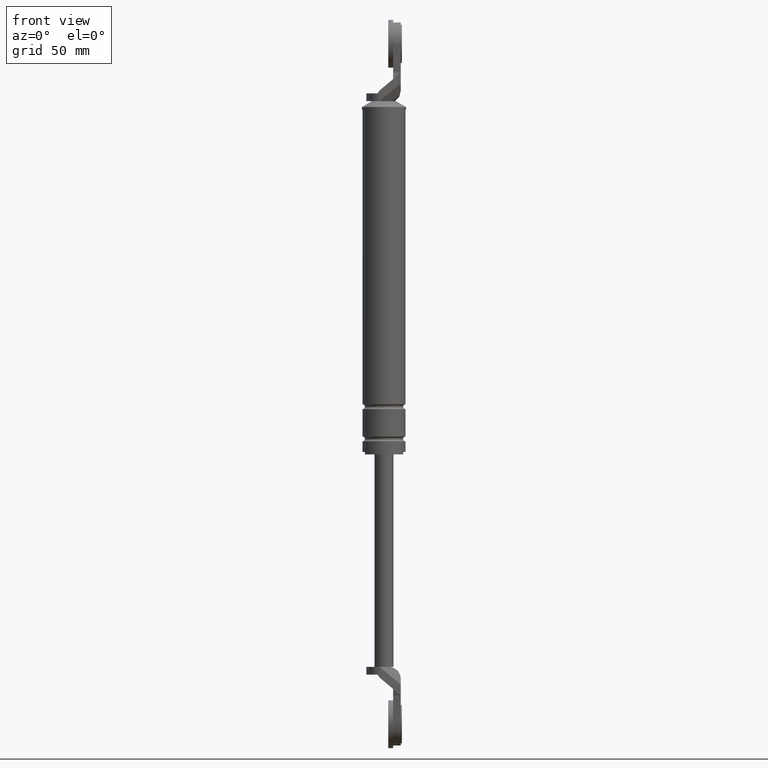
[diagram: clean part render]
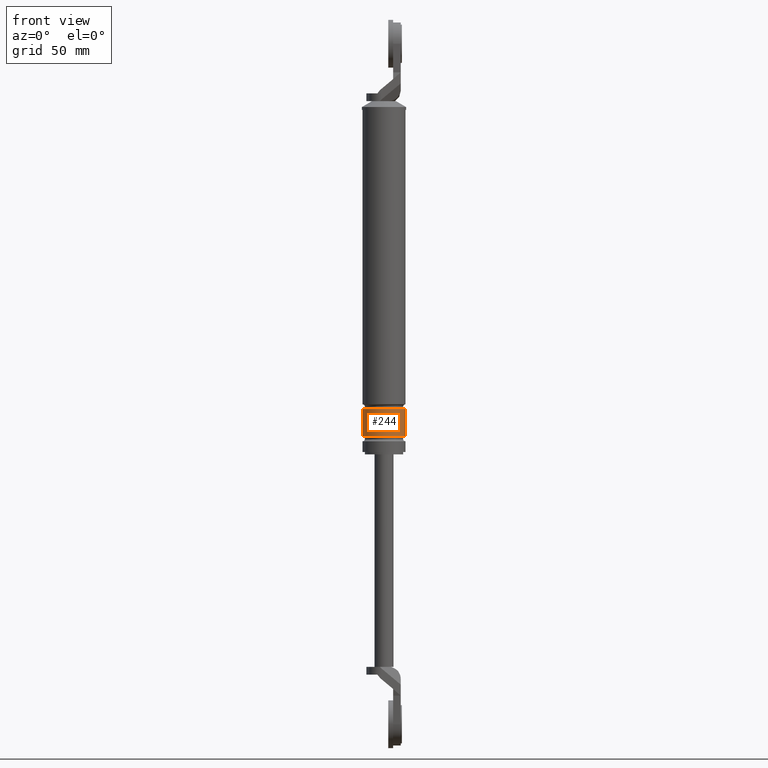
[diagram: same view with one face highlighted and labeled with its STEP entity id]
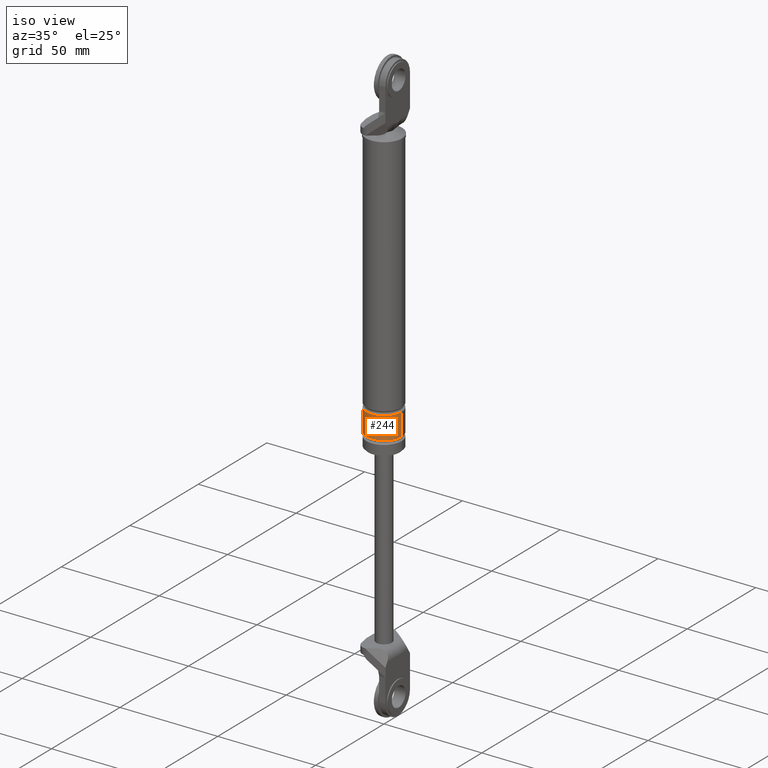
[diagram: same view with one face highlighted and labeled with its STEP entity id]
A machine part, front view. The second image highlights one B-rep face of the part: STEP entity #244.
A second angle (iso view) of the same face is appended — the face is thin or edge-on in the first view.
In plain terms, the highlighted cylindrical surface (edge-blend (fillet) strip) has radius 9 mm, axis along (0, 0, 1).
Its self-contained STEP definition (entity closure, byte-faithful):
#244=ADVANCED_FACE('',(#695),#694,.T.);
#694=CYLINDRICAL_SURFACE('',#1407,9.00000000000E+000);
#695=FACE_OUTER_BOUND('',#1408,.T.);
#1404=CARTESIAN_POINT('',(0.00000000000E+000,3.58204186421E-014,0.00000000000E+000));
#1405=DIRECTION('',(-0.00000000000E+000,-0.00000000000E+000,1.00000000000E+000));
#1406=DIRECTION('',(1.00000000000E+000,0.00000000000E+000,0.00000000000E+000));
#1407=AXIS2_PLACEMENT_3D('',#1404,#1405,#1406);
#1408=EDGE_LOOP('',(#1954,#1955,#1956,#1957));
#1954=ORIENTED_EDGE('',*,*,#2265,.F.);
#1955=ORIENTED_EDGE('',*,*,#2262,.T.);
#1956=ORIENTED_EDGE('',*,*,#2266,.T.);
#1957=ORIENTED_EDGE('',*,*,#2264,.F.);
#2262=EDGE_CURVE('',#3054,#3047,#3055,.T.);
#2264=EDGE_CURVE('',#3061,#3046,#3068,.T.);
#2265=EDGE_CURVE('',#3054,#3061,#3074,.T.);
#2266=EDGE_CURVE('',#3047,#3046,#3080,.T.);
#3046=VERTEX_POINT('',#4103);
#3047=VERTEX_POINT('',#4104);
#3054=VERTEX_POINT('',#4109);
#3055=(BOUNDED_CURVE() B_SPLINE_CURVE(1,(#4110,#4111),.UNSPECIFIED.,.F.,.F.) B_SPLINE_CURVE_WITH_KNOTS((2,2),(8.33333343261E-002,9.16666667006E-001),.UNSPECIFIED.) CURVE() GEOMETRIC_REPRESENTATION_ITEM() RATIONAL_B_SPLINE_CURVE((1.00000000000E+000,1.00000000000E+000)) REPRESENTATION_ITEM('') );
#3061=VERTEX_POINT('',#4112);
#3068=(BOUNDED_CURVE() B_SPLINE_CURVE(1,(#4117,#4118),.UNSPECIFIED.,.F.,.F.) B_SPLINE_CURVE_WITH_KNOTS((2,2),(8.33333333333E-002,9.16666666667E-001),.UNSPECIFIED.) CURVE() GEOMETRIC_REPRESENTATION_ITEM() RATIONAL_B_SPLINE_CURVE((7.50000000000E-001,7.50000000000E-001)) REPRESENTATION_ITEM('') );
#3074=CIRCLE('',#4122,9.00000000000E+000);
#3080=CIRCLE('',#4126,9.00000000000E+000);
#4103=CARTESIAN_POINT('',(-9.00000000000E+000,3.58204186421E-014,-4.00000150000E+001));
#4104=CARTESIAN_POINT('',(9.00000000000E+000,3.61192557345E-014,-4.00000150000E+001));
#4109=CARTESIAN_POINT('',(9.00000000000E+000,3.61192557345E-014,-5.15000150000E+001));
#4110=CARTESIAN_POINT('',(9.00000000000E+000,3.58204186421E-014,-5.15000149863E+001));
#4111=CARTESIAN_POINT('',(9.00000000000E+000,3.58204186421E-014,-4.00000149953E+001));
#4112=CARTESIAN_POINT('',(-9.00000000000E+000,3.58204186421E-014,-5.15000150000E+001));
#4117=CARTESIAN_POINT('',(-9.00000000000E+000,3.52310773148E-014,-5.15000150000E+001));
#4118=CARTESIAN_POINT('',(-9.00000000000E+000,3.52310773148E-014,-4.00000150000E+001));
#4119=CARTESIAN_POINT('',(0.00000000000E+000,3.58204186421E-014,-5.15000150000E+001));
#4120=DIRECTION('',(-0.00000000000E+000,0.00000000000E+000,-1.00000000000E+000));
#4121=DIRECTION('',(-1.00000000000E+000,-1.22460635382E-016,0.00000000000E+000));
#4122=AXIS2_PLACEMENT_3D('',#4119,#4120,#4121);
#4123=CARTESIAN_POINT('',(0.00000000000E+000,3.58204186421E-014,-4.00000150000E+001));
#4124=DIRECTION('',(-0.00000000000E+000,0.00000000000E+000,-1.00000000000E+000));
#4125=DIRECTION('',(-1.00000000000E+000,-1.22460635382E-016,0.00000000000E+000));
#4126=AXIS2_PLACEMENT_3D('',#4123,#4124,#4125);